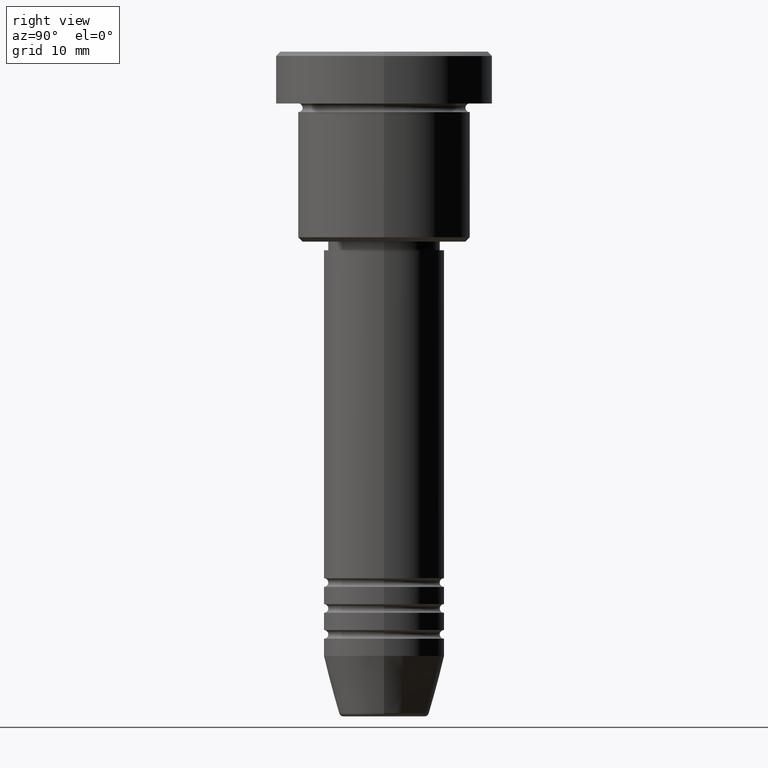
[diagram: clean part render]
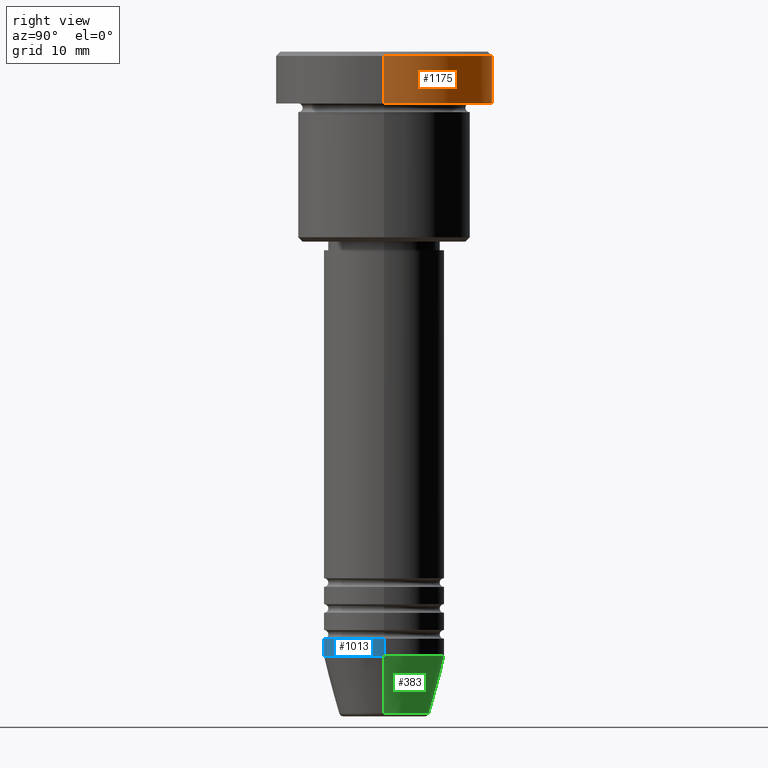
[diagram: same view with three faces highlighted in distinct colors, each labeled with its STEP entity id]
A machine part, right view with three faces highlighted in distinct colors.
Their STEP definitions:

[orange] entity #1175 — the highlighted cylindrical surface (partial cylindrical patch) has radius 12.5 mm, axis along (-0, -0, 1).
#8 = CARTESIAN_POINT ( 'NONE',  ( 0.000000000000000000, 0.000000000000000000, 0.000000000000000000 ) ) ;
#17 = LINE ( 'NONE', #136, #989 ) ;
#73 = EDGE_CURVE ( 'NONE', #579, #157, #330, .T. ) ;
#114 = CARTESIAN_POINT ( 'NONE',  ( 0.000000000000000000, 0.000000000000000000, -0.4999999999999988343 ) ) ;
#116 = EDGE_CURVE ( 'NONE', #218, #579, #334, .T. ) ;
#135 = DIRECTION ( 'NONE',  ( 1.000000000000000000, 0.000000000000000000, 0.000000000000000000 ) ) ;
#136 = CARTESIAN_POINT ( 'NONE',  ( 12.50000000000000000, 0.000000000000000000, 0.000000000000000000 ) ) ;
#157 = VERTEX_POINT ( 'NONE', #604 ) ;
#158 = CARTESIAN_POINT ( 'NONE',  ( -12.50000000000000000, 1.530808498934191521E-15, -5.999999999999996447 ) ) ;
#207 = DIRECTION ( 'NONE',  ( 1.000000000000000000, 0.000000000000000000, 0.000000000000000000 ) ) ;
#216 = VECTOR ( 'NONE', #768, 1000.000000000000000 ) ;
#218 = VERTEX_POINT ( 'NONE', #501 ) ;
#230 = ORIENTED_EDGE ( 'NONE', *, *, #897, .F. ) ;
#271 = DIRECTION ( 'NONE',  ( -0.000000000000000000, -0.000000000000000000, 1.000000000000000000 ) ) ;
#305 = DIRECTION ( 'NONE',  ( -0.000000000000000000, -0.000000000000000000, 1.000000000000000000 ) ) ;
#330 = LINE ( 'NONE', #876, #216 ) ;
#334 = CIRCLE ( 'NONE', #1157, 12.50000000000000000 ) ;
#459 = EDGE_CURVE ( 'NONE', #157, #938, #986, .T. ) ;
#478 = AXIS2_PLACEMENT_3D ( 'NONE', #8, #271, #637 ) ;
#501 = CARTESIAN_POINT ( 'NONE',  ( 12.50000000000000000, 0.000000000000000000, -5.999999999999996447 ) ) ;
#579 = VERTEX_POINT ( 'NONE', #158 ) ;
#591 = DIRECTION ( 'NONE',  ( 0.000000000000000000, 0.000000000000000000, -1.000000000000000000 ) ) ;
#604 = CARTESIAN_POINT ( 'NONE',  ( -12.50000000000000000, 1.530808498934191521E-15, -0.4999999999999988343 ) ) ;
#605 = ORIENTED_EDGE ( 'NONE', *, *, #116, .T. ) ;
#637 = DIRECTION ( 'NONE',  ( 1.000000000000000000, 0.000000000000000000, 0.000000000000000000 ) ) ;
#689 = AXIS2_PLACEMENT_3D ( 'NONE', #114, #591, #207 ) ;
#768 = DIRECTION ( 'NONE',  ( -0.000000000000000000, -0.000000000000000000, 1.000000000000000000 ) ) ;
#790 = CARTESIAN_POINT ( 'NONE',  ( 0.000000000000000000, 0.000000000000000000, -5.999999999999996447 ) ) ;
#836 = DIRECTION ( 'NONE',  ( -0.000000000000000000, -0.000000000000000000, 1.000000000000000000 ) ) ;
#876 = CARTESIAN_POINT ( 'NONE',  ( -12.50000000000000000, 1.530808498934191521E-15, 0.000000000000000000 ) ) ;
#893 = ORIENTED_EDGE ( 'NONE', *, *, #459, .T. ) ;
#897 = EDGE_CURVE ( 'NONE', #218, #938, #17, .T. ) ;
#907 = CYLINDRICAL_SURFACE ( 'NONE', #478, 12.50000000000000000 ) ;
#916 = ORIENTED_EDGE ( 'NONE', *, *, #73, .T. ) ;
#938 = VERTEX_POINT ( 'NONE', #1130 ) ;
#986 = CIRCLE ( 'NONE', #689, 12.50000000000000000 ) ;
#988 = EDGE_LOOP ( 'NONE', ( #605, #916, #893, #230 ) ) ;
#989 = VECTOR ( 'NONE', #836, 1000.000000000000000 ) ;
#1130 = CARTESIAN_POINT ( 'NONE',  ( 12.50000000000000000, 0.000000000000000000, -0.4999999999999988343 ) ) ;
#1157 = AXIS2_PLACEMENT_3D ( 'NONE', #790, #305, #135 ) ;
#1167 = FACE_OUTER_BOUND ( 'NONE', #988, .T. ) ;
#1175 = ADVANCED_FACE ( 'NONE', ( #1167 ), #907, .T. ) ;

[blue] entity #1013 — the highlighted cylindrical surface (partial cylindrical patch) has radius 7 mm, axis along (-0, -0, 1).
#19 = DIRECTION ( 'NONE',  ( -0.000000000000000000, -0.000000000000000000, 1.000000000000000000 ) ) ;
#154 = CARTESIAN_POINT ( 'NONE',  ( 7.000000000000000000, 0.000000000000000000, -70.00000000000000000 ) ) ;
#187 = DIRECTION ( 'NONE',  ( 1.000000000000000000, 0.000000000000000000, 0.000000000000000000 ) ) ;
#205 = VERTEX_POINT ( 'NONE', #154 ) ;
#211 = DIRECTION ( 'NONE',  ( -0.000000000000000000, -0.000000000000000000, 1.000000000000000000 ) ) ;
#222 = AXIS2_PLACEMENT_3D ( 'NONE', #716, #1065, #423 ) ;
#247 = CARTESIAN_POINT ( 'NONE',  ( -7.000000000000000000, 8.572527594031473190E-16, 0.000000000000000000 ) ) ;
#254 = EDGE_CURVE ( 'NONE', #792, #205, #797, .T. ) ;
#258 = AXIS2_PLACEMENT_3D ( 'NONE', #753, #211, #308 ) ;
#276 = AXIS2_PLACEMENT_3D ( 'NONE', #641, #19, #187 ) ;
#308 = DIRECTION ( 'NONE',  ( 1.000000000000000000, 0.000000000000000000, 0.000000000000000000 ) ) ;
#359 = VERTEX_POINT ( 'NONE', #655 ) ;
#397 = ORIENTED_EDGE ( 'NONE', *, *, #474, .F. ) ;
#402 = VERTEX_POINT ( 'NONE', #1091 ) ;
#403 = FACE_OUTER_BOUND ( 'NONE', #807, .T. ) ;
#423 = DIRECTION ( 'NONE',  ( 1.000000000000000000, 0.000000000000000000, 0.000000000000000000 ) ) ;
#474 = EDGE_CURVE ( 'NONE', #402, #359, #1139, .T. ) ;
#538 = CARTESIAN_POINT ( 'NONE',  ( -7.000000000000000000, 8.572527594031473190E-16, -70.00000000000000000 ) ) ;
#542 = LINE ( 'NONE', #654, #1178 ) ;
#595 = EDGE_CURVE ( 'NONE', #792, #402, #975, .T. ) ;
#641 = CARTESIAN_POINT ( 'NONE',  ( 0.000000000000000000, 0.000000000000000000, -70.00000000000000000 ) ) ;
#654 = CARTESIAN_POINT ( 'NONE',  ( 7.000000000000000000, 0.000000000000000000, 0.000000000000000000 ) ) ;
#655 = CARTESIAN_POINT ( 'NONE',  ( 7.000000000000000000, 0.000000000000000000, -68.00000000000000000 ) ) ;
#656 = ORIENTED_EDGE ( 'NONE', *, *, #595, .F. ) ;
#716 = CARTESIAN_POINT ( 'NONE',  ( 0.000000000000000000, 0.000000000000000000, 0.000000000000000000 ) ) ;
#733 = EDGE_CURVE ( 'NONE', #205, #359, #542, .T. ) ;
#740 = DIRECTION ( 'NONE',  ( -0.000000000000000000, -0.000000000000000000, 1.000000000000000000 ) ) ;
#753 = CARTESIAN_POINT ( 'NONE',  ( 0.000000000000000000, 0.000000000000000000, -68.00000000000000000 ) ) ;
#792 = VERTEX_POINT ( 'NONE', #538 ) ;
#797 = CIRCLE ( 'NONE', #276, 7.000000000000000000 ) ;
#807 = EDGE_LOOP ( 'NONE', ( #656, #1066, #1034, #397 ) ) ;
#809 = DIRECTION ( 'NONE',  ( -0.000000000000000000, -0.000000000000000000, 1.000000000000000000 ) ) ;
#975 = LINE ( 'NONE', #247, #1005 ) ;
#982 = CYLINDRICAL_SURFACE ( 'NONE', #222, 7.000000000000000000 ) ;
#1005 = VECTOR ( 'NONE', #809, 1000.000000000000000 ) ;
#1013 = ADVANCED_FACE ( 'NONE', ( #403 ), #982, .T. ) ;
#1034 = ORIENTED_EDGE ( 'NONE', *, *, #733, .T. ) ;
#1065 = DIRECTION ( 'NONE',  ( -0.000000000000000000, -0.000000000000000000, 1.000000000000000000 ) ) ;
#1066 = ORIENTED_EDGE ( 'NONE', *, *, #254, .T. ) ;
#1091 = CARTESIAN_POINT ( 'NONE',  ( -7.000000000000000000, 8.572527594031473190E-16, -68.00000000000000000 ) ) ;
#1139 = CIRCLE ( 'NONE', #258, 7.000000000000000000 ) ;
#1178 = VECTOR ( 'NONE', #740, 1000.000000000000000 ) ;

[green] entity #383 — the highlighted conical surface has half-angle 15 deg.
#77 = CIRCLE ( 'NONE', #410, 7.000000000000000000 ) ;
#98 = DIRECTION ( 'NONE',  ( -0.000000000000000000, -0.000000000000000000, 1.000000000000000000 ) ) ;
#125 = CARTESIAN_POINT ( 'NONE',  ( 7.000000000000000000, 0.000000000000000000, -70.00000000000000000 ) ) ;
#154 = CARTESIAN_POINT ( 'NONE',  ( 7.000000000000000000, 0.000000000000000000, -70.00000000000000000 ) ) ;
#159 = EDGE_CURVE ( 'NONE', #950, #205, #1141, .T. ) ;
#169 = EDGE_CURVE ( 'NONE', #1098, #792, #701, .T. ) ;
#192 = DIRECTION ( 'NONE',  ( 1.000000000000000000, 0.000000000000000000, 0.000000000000000000 ) ) ;
#205 = VERTEX_POINT ( 'NONE', #154 ) ;
#249 = CARTESIAN_POINT ( 'NONE',  ( -5.223655072137187716, 7.484830028987059188E-16, -76.62940952255127058 ) ) ;
#257 = VECTOR ( 'NONE', #1056, 1000.000000000000000 ) ;
#273 = EDGE_CURVE ( 'NONE', #205, #792, #77, .T. ) ;
#295 = AXIS2_PLACEMENT_3D ( 'NONE', #445, #98, #820 ) ;
#350 = DIRECTION ( 'NONE',  ( -0.000000000000000000, -0.000000000000000000, 1.000000000000000000 ) ) ;
#383 = ADVANCED_FACE ( 'NONE', ( #738 ), #1081, .T. ) ;
#409 = ORIENTED_EDGE ( 'NONE', *, *, #1027, .T. ) ;
#410 = AXIS2_PLACEMENT_3D ( 'NONE', #539, #350, #192 ) ;
#445 = CARTESIAN_POINT ( 'NONE',  ( 0.000000000000000000, 0.000000000000000000, -70.00000000000000000 ) ) ;
#502 = EDGE_LOOP ( 'NONE', ( #409, #731, #747, #1063 ) ) ;
#538 = CARTESIAN_POINT ( 'NONE',  ( -7.000000000000000000, 8.572527594031473190E-16, -70.00000000000000000 ) ) ;
#539 = CARTESIAN_POINT ( 'NONE',  ( 0.000000000000000000, 0.000000000000000000, -70.00000000000000000 ) ) ;
#601 = DIRECTION ( 'NONE',  ( -0.000000000000000000, -0.000000000000000000, 1.000000000000000000 ) ) ;
#701 = LINE ( 'NONE', #1040, #1046 ) ;
#731 = ORIENTED_EDGE ( 'NONE', *, *, #169, .T. ) ;
#738 = FACE_OUTER_BOUND ( 'NONE', #502, .T. ) ;
#747 = ORIENTED_EDGE ( 'NONE', *, *, #273, .F. ) ;
#771 = CARTESIAN_POINT ( 'NONE',  ( 5.223655072137187716, 0.000000000000000000, -76.62940952255127058 ) ) ;
#792 = VERTEX_POINT ( 'NONE', #538 ) ;
#799 = DIRECTION ( 'NONE',  ( 1.000000000000000000, 0.000000000000000000, 0.000000000000000000 ) ) ;
#819 = AXIS2_PLACEMENT_3D ( 'NONE', #867, #601, #799 ) ;
#820 = DIRECTION ( 'NONE',  ( 1.000000000000000000, 0.000000000000000000, 0.000000000000000000 ) ) ;
#867 = CARTESIAN_POINT ( 'NONE',  ( 0.000000000000000000, 0.000000000000000000, -76.62940952255127058 ) ) ;
#950 = VERTEX_POINT ( 'NONE', #771 ) ;
#1027 = EDGE_CURVE ( 'NONE', #950, #1098, #1181, .T. ) ;
#1040 = CARTESIAN_POINT ( 'NONE',  ( -7.000000000000000000, 8.572527594031473190E-16, -70.00000000000000000 ) ) ;
#1046 = VECTOR ( 'NONE', #1153, 1000.000000000000000 ) ;
#1056 = DIRECTION ( 'NONE',  ( 0.2588190451025214056, 0.000000000000000000, 0.9659258262890680902 ) ) ;
#1063 = ORIENTED_EDGE ( 'NONE', *, *, #159, .F. ) ;
#1081 = CONICAL_SURFACE ( 'NONE', #295, 7.000000000000000000, 0.2617993877991501295 ) ;
#1098 = VERTEX_POINT ( 'NONE', #249 ) ;
#1141 = LINE ( 'NONE', #125, #257 ) ;
#1153 = DIRECTION ( 'NONE',  ( -0.2588190451025214056, 3.169619151431772953E-17, 0.9659258262890680902 ) ) ;
#1181 = CIRCLE ( 'NONE', #819, 5.223655072137187716 ) ;